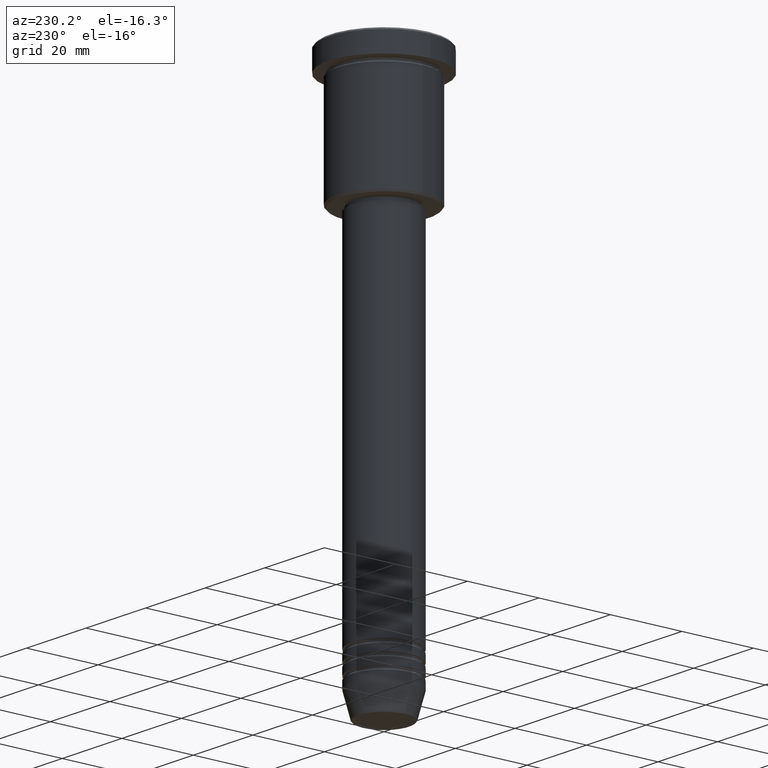
[diagram: clean part render]
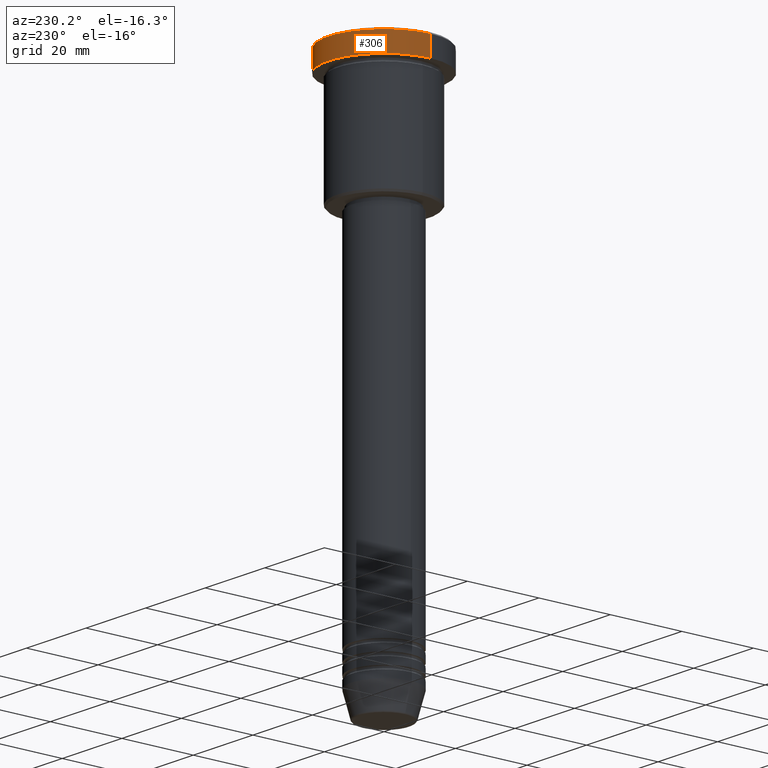
[diagram: same view with one face highlighted and labeled with its STEP entity id]
A machine part, auxiliary view. The second image highlights one B-rep face of the part: STEP entity #306.
In plain terms, the highlighted cylindrical surface (partial cylindrical patch) has radius 15.5 mm, axis along (-0, -0, 1).
Its self-contained STEP definition (entity closure, byte-faithful):
#41 = VERTEX_POINT ( 'NONE', #1111 ) ;
#67 = DIRECTION ( 'NONE',  ( 1.000000000000000000, 0.000000000000000000, 0.000000000000000000 ) ) ;
#91 = VERTEX_POINT ( 'NONE', #1129 ) ;
#92 = ORIENTED_EDGE ( 'NONE', *, *, #703, .F. ) ;
#168 = DIRECTION ( 'NONE',  ( 1.000000000000000000, 0.000000000000000000, 0.000000000000000000 ) ) ;
#201 = CARTESIAN_POINT ( 'NONE',  ( -15.50000000000000000, 1.898202538678397557E-15, -0.5000000000000264233 ) ) ;
#206 = AXIS2_PLACEMENT_3D ( 'NONE', #428, #879, #67 ) ;
#249 = DIRECTION ( 'NONE',  ( -0.000000000000000000, -0.000000000000000000, 1.000000000000000000 ) ) ;
#257 = CARTESIAN_POINT ( 'NONE',  ( -15.50000000000000000, 1.898202538678397557E-15, -5.999999999999995559 ) ) ;
#306 = ADVANCED_FACE ( 'NONE', ( #995 ), #344, .T. ) ;
#308 = ORIENTED_EDGE ( 'NONE', *, *, #935, .T. ) ;
#309 = DIRECTION ( 'NONE',  ( 0.000000000000000000, 0.000000000000000000, -1.000000000000000000 ) ) ;
#344 = CYLINDRICAL_SURFACE ( 'NONE', #377, 15.50000000000000000 ) ;
#377 = AXIS2_PLACEMENT_3D ( 'NONE', #977, #249, #168 ) ;
#391 = CARTESIAN_POINT ( 'NONE',  ( 0.000000000000000000, 0.000000000000000000, -0.5000000000000264233 ) ) ;
#392 = VECTOR ( 'NONE', #640, 1000.000000000000000 ) ;
#416 = EDGE_CURVE ( 'NONE', #743, #502, #1094, .T. ) ;
#428 = CARTESIAN_POINT ( 'NONE',  ( 0.000000000000000000, 0.000000000000000000, -5.999999999999995559 ) ) ;
#471 = ORIENTED_EDGE ( 'NONE', *, *, #787, .T. ) ;
#502 = VERTEX_POINT ( 'NONE', #201 ) ;
#585 = DIRECTION ( 'NONE',  ( 1.000000000000000000, 0.000000000000000000, 0.000000000000000000 ) ) ;
#603 = CIRCLE ( 'NONE', #206, 15.50000000000000000 ) ;
#640 = DIRECTION ( 'NONE',  ( -0.000000000000000000, -0.000000000000000000, 1.000000000000000000 ) ) ;
#688 = EDGE_LOOP ( 'NONE', ( #471, #923, #308, #92 ) ) ;
#703 = EDGE_CURVE ( 'NONE', #91, #41, #864, .T. ) ;
#743 = VERTEX_POINT ( 'NONE', #257 ) ;
#787 = EDGE_CURVE ( 'NONE', #91, #743, #603, .T. ) ;
#819 = CIRCLE ( 'NONE', #1179, 15.50000000000000000 ) ;
#864 = LINE ( 'NONE', #1072, #1082 ) ;
#879 = DIRECTION ( 'NONE',  ( -0.000000000000000000, -0.000000000000000000, 1.000000000000000000 ) ) ;
#923 = ORIENTED_EDGE ( 'NONE', *, *, #416, .T. ) ;
#935 = EDGE_CURVE ( 'NONE', #502, #41, #819, .T. ) ;
#977 = CARTESIAN_POINT ( 'NONE',  ( 0.000000000000000000, 0.000000000000000000, 0.000000000000000000 ) ) ;
#995 = FACE_OUTER_BOUND ( 'NONE', #688, .T. ) ;
#1072 = CARTESIAN_POINT ( 'NONE',  ( 15.50000000000000000, 0.000000000000000000, 0.000000000000000000 ) ) ;
#1082 = VECTOR ( 'NONE', #1161, 1000.000000000000000 ) ;
#1084 = CARTESIAN_POINT ( 'NONE',  ( -15.50000000000000000, 1.898202538678397557E-15, 0.000000000000000000 ) ) ;
#1094 = LINE ( 'NONE', #1084, #392 ) ;
#1111 = CARTESIAN_POINT ( 'NONE',  ( 15.50000000000000000, 0.000000000000000000, -0.5000000000000264233 ) ) ;
#1129 = CARTESIAN_POINT ( 'NONE',  ( 15.50000000000000000, 0.000000000000000000, -5.999999999999995559 ) ) ;
#1161 = DIRECTION ( 'NONE',  ( -0.000000000000000000, -0.000000000000000000, 1.000000000000000000 ) ) ;
#1179 = AXIS2_PLACEMENT_3D ( 'NONE', #391, #309, #585 ) ;